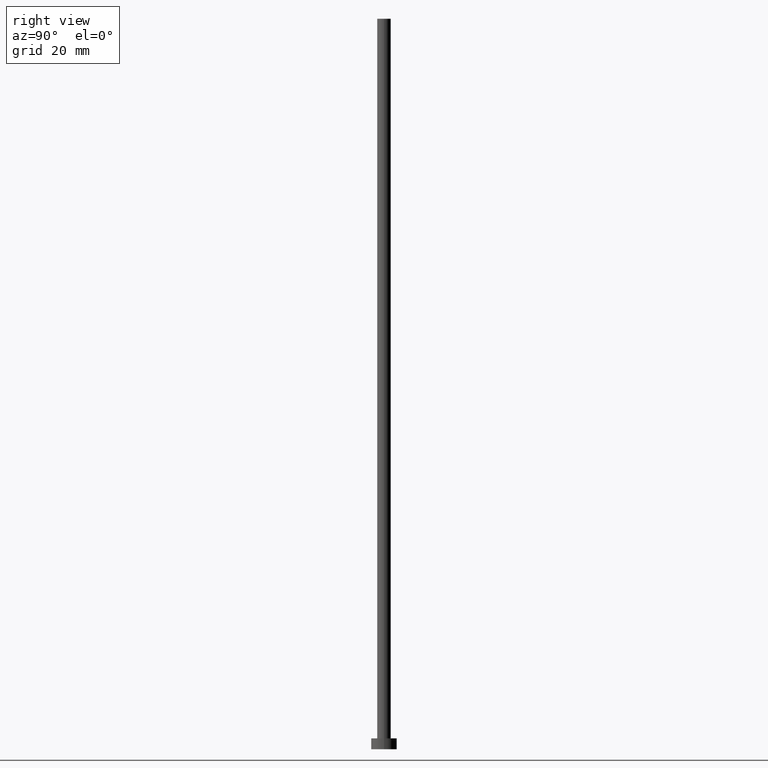
[diagram: clean part render]
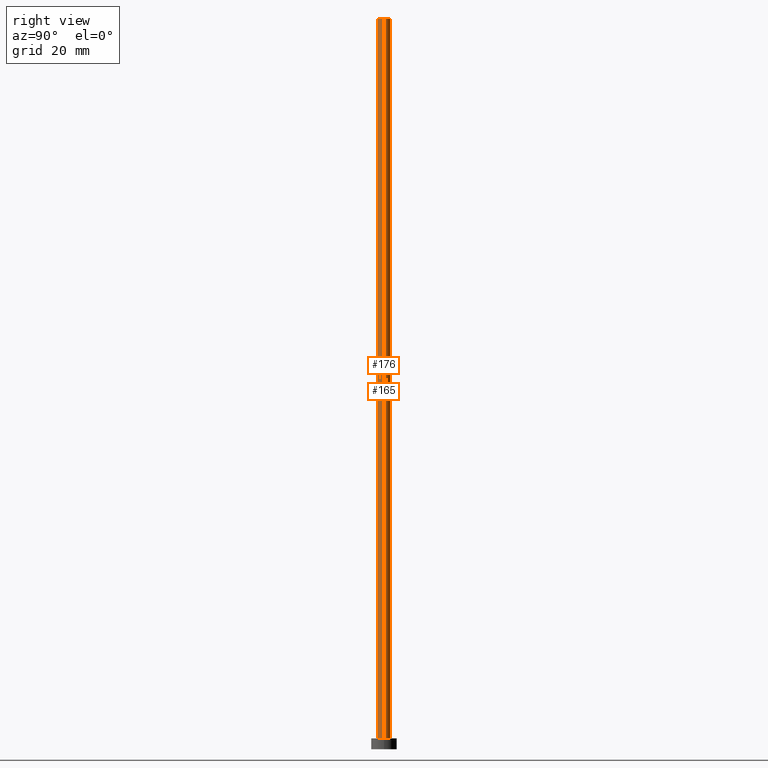
[diagram: same view with one multi-face feature highlighted, each face labeled with its STEP entity id]
A machine part, right view. The highlighted faces form ONE feature: a constant-radius fillet chain: 2 tangent blend faces with common blend radius 1.85 mm. The faces share edges in the B-rep.
Their STEP definitions:
[1] entity #176 (Cylinder):
#3 = DIRECTION ( 'NONE',  ( -0.000000000000000000, -0.000000000000000000, -1.000000000000000000 ) ) ;
#8 = LINE ( 'NONE', #86, #66 ) ;
#9 = DIRECTION ( 'NONE',  ( 1.000000000000000000, 0.000000000000000000, 0.000000000000000000 ) ) ;
#15 = EDGE_CURVE ( 'NONE', #126, #94, #8, .T. ) ;
#27 = CIRCLE ( 'NONE', #85, 1.850000000000000089 ) ;
#30 = ORIENTED_EDGE ( 'NONE', *, *, #15, .F. ) ;
#34 = DIRECTION ( 'NONE',  ( -0.000000000000000000, -0.000000000000000000, -1.000000000000000000 ) ) ;
#37 = CARTESIAN_POINT ( 'NONE',  ( 1.850000000000000089, 2.265596578422603100E-16, 200.0000000000000000 ) ) ;
#42 = EDGE_CURVE ( 'NONE', #248, #94, #222, .T. ) ;
#49 = VERTEX_POINT ( 'NONE', #158 ) ;
#65 = DIRECTION ( 'NONE',  ( 0.000000000000000000, 0.000000000000000000, 1.000000000000000000 ) ) ;
#66 = VECTOR ( 'NONE', #186, 1000.000000000000000 ) ;
#74 = CARTESIAN_POINT ( 'NONE',  ( 1.850000000000000089, 2.265596578422603100E-16, 3.000000000000000000 ) ) ;
#76 = DIRECTION ( 'NONE',  ( -1.000000000000000000, 0.000000000000000000, 0.000000000000000000 ) ) ;
#85 = AXIS2_PLACEMENT_3D ( 'NONE', #194, #123, #9 ) ;
#86 = CARTESIAN_POINT ( 'NONE',  ( 1.850000000000000089, 2.265596578422603100E-16, 200.0000000000000000 ) ) ;
#94 = VERTEX_POINT ( 'NONE', #74 ) ;
#102 = DIRECTION ( 'NONE',  ( 1.000000000000000000, 0.000000000000000000, 0.000000000000000000 ) ) ;
#105 = CARTESIAN_POINT ( 'NONE',  ( -1.850000000000000089, 0.000000000000000000, 200.0000000000000000 ) ) ;
#123 = DIRECTION ( 'NONE',  ( 0.000000000000000000, 0.000000000000000000, 1.000000000000000000 ) ) ;
#126 = VERTEX_POINT ( 'NONE', #37 ) ;
#130 = AXIS2_PLACEMENT_3D ( 'NONE', #164, #65, #102 ) ;
#147 = ORIENTED_EDGE ( 'NONE', *, *, #238, .F. ) ;
#149 = EDGE_LOOP ( 'NONE', ( #30, #147, #193, #197 ) ) ;
#153 = FACE_OUTER_BOUND ( 'NONE', #149, .T. ) ;
#154 = LINE ( 'NONE', #105, #175 ) ;
#158 = CARTESIAN_POINT ( 'NONE',  ( -1.850000000000000089, 0.000000000000000000, 200.0000000000000000 ) ) ;
#163 = AXIS2_PLACEMENT_3D ( 'NONE', #196, #34, #76 ) ;
#164 = CARTESIAN_POINT ( 'NONE',  ( 0.000000000000000000, 0.000000000000000000, 3.000000000000000000 ) ) ;
#175 = VECTOR ( 'NONE', #3, 1000.000000000000000 ) ;
#176 = ADVANCED_FACE ( 'NONE', ( #153 ), #254, .T. ) ;
#186 = DIRECTION ( 'NONE',  ( -0.000000000000000000, -0.000000000000000000, -1.000000000000000000 ) ) ;
#193 = ORIENTED_EDGE ( 'NONE', *, *, #227, .T. ) ;
#194 = CARTESIAN_POINT ( 'NONE',  ( 0.000000000000000000, 0.000000000000000000, 200.0000000000000000 ) ) ;
#196 = CARTESIAN_POINT ( 'NONE',  ( 0.000000000000000000, 0.000000000000000000, 200.0000000000000000 ) ) ;
#197 = ORIENTED_EDGE ( 'NONE', *, *, #42, .T. ) ;
#210 = CARTESIAN_POINT ( 'NONE',  ( -1.850000000000000089, 0.000000000000000000, 3.000000000000000000 ) ) ;
#222 = CIRCLE ( 'NONE', #130, 1.850000000000000089 ) ;
#227 = EDGE_CURVE ( 'NONE', #49, #248, #154, .T. ) ;
#238 = EDGE_CURVE ( 'NONE', #49, #126, #27, .T. ) ;
#248 = VERTEX_POINT ( 'NONE', #210 ) ;
#254 = CYLINDRICAL_SURFACE ( 'NONE', #163, 1.850000000000000089 ) ;
[2] entity #165 (Cylinder):
#3 = DIRECTION ( 'NONE',  ( -0.000000000000000000, -0.000000000000000000, -1.000000000000000000 ) ) ;
#4 = DIRECTION ( 'NONE',  ( 1.000000000000000000, 0.000000000000000000, 0.000000000000000000 ) ) ;
#6 = AXIS2_PLACEMENT_3D ( 'NONE', #113, #58, #250 ) ;
#7 = EDGE_CURVE ( 'NONE', #94, #248, #81, .T. ) ;
#8 = LINE ( 'NONE', #86, #66 ) ;
#13 = FACE_OUTER_BOUND ( 'NONE', #54, .T. ) ;
#15 = EDGE_CURVE ( 'NONE', #126, #94, #8, .T. ) ;
#37 = CARTESIAN_POINT ( 'NONE',  ( 1.850000000000000089, 2.265596578422603100E-16, 200.0000000000000000 ) ) ;
#49 = VERTEX_POINT ( 'NONE', #158 ) ;
#54 = EDGE_LOOP ( 'NONE', ( #114, #170, #167, #195 ) ) ;
#58 = DIRECTION ( 'NONE',  ( 0.000000000000000000, 0.000000000000000000, 1.000000000000000000 ) ) ;
#66 = VECTOR ( 'NONE', #186, 1000.000000000000000 ) ;
#67 = DIRECTION ( 'NONE',  ( 0.000000000000000000, 0.000000000000000000, 1.000000000000000000 ) ) ;
#74 = CARTESIAN_POINT ( 'NONE',  ( 1.850000000000000089, 2.265596578422603100E-16, 3.000000000000000000 ) ) ;
#81 = CIRCLE ( 'NONE', #184, 1.850000000000000089 ) ;
#86 = CARTESIAN_POINT ( 'NONE',  ( 1.850000000000000089, 2.265596578422603100E-16, 200.0000000000000000 ) ) ;
#94 = VERTEX_POINT ( 'NONE', #74 ) ;
#97 = EDGE_CURVE ( 'NONE', #126, #49, #204, .T. ) ;
#105 = CARTESIAN_POINT ( 'NONE',  ( -1.850000000000000089, 0.000000000000000000, 200.0000000000000000 ) ) ;
#113 = CARTESIAN_POINT ( 'NONE',  ( 0.000000000000000000, 0.000000000000000000, 200.0000000000000000 ) ) ;
#114 = ORIENTED_EDGE ( 'NONE', *, *, #97, .F. ) ;
#118 = DIRECTION ( 'NONE',  ( -0.000000000000000000, -0.000000000000000000, -1.000000000000000000 ) ) ;
#126 = VERTEX_POINT ( 'NONE', #37 ) ;
#154 = LINE ( 'NONE', #105, #175 ) ;
#158 = CARTESIAN_POINT ( 'NONE',  ( -1.850000000000000089, 0.000000000000000000, 200.0000000000000000 ) ) ;
#165 = ADVANCED_FACE ( 'NONE', ( #13 ), #217, .T. ) ;
#167 = ORIENTED_EDGE ( 'NONE', *, *, #7, .T. ) ;
#170 = ORIENTED_EDGE ( 'NONE', *, *, #15, .T. ) ;
#175 = VECTOR ( 'NONE', #3, 1000.000000000000000 ) ;
#184 = AXIS2_PLACEMENT_3D ( 'NONE', #246, #67, #4 ) ;
#186 = DIRECTION ( 'NONE',  ( -0.000000000000000000, -0.000000000000000000, -1.000000000000000000 ) ) ;
#188 = AXIS2_PLACEMENT_3D ( 'NONE', #240, #118, #223 ) ;
#195 = ORIENTED_EDGE ( 'NONE', *, *, #227, .F. ) ;
#204 = CIRCLE ( 'NONE', #6, 1.850000000000000089 ) ;
#210 = CARTESIAN_POINT ( 'NONE',  ( -1.850000000000000089, 0.000000000000000000, 3.000000000000000000 ) ) ;
#217 = CYLINDRICAL_SURFACE ( 'NONE', #188, 1.850000000000000089 ) ;
#223 = DIRECTION ( 'NONE',  ( -1.000000000000000000, 0.000000000000000000, 0.000000000000000000 ) ) ;
#227 = EDGE_CURVE ( 'NONE', #49, #248, #154, .T. ) ;
#240 = CARTESIAN_POINT ( 'NONE',  ( 0.000000000000000000, 0.000000000000000000, 200.0000000000000000 ) ) ;
#246 = CARTESIAN_POINT ( 'NONE',  ( 0.000000000000000000, 0.000000000000000000, 3.000000000000000000 ) ) ;
#248 = VERTEX_POINT ( 'NONE', #210 ) ;
#250 = DIRECTION ( 'NONE',  ( 1.000000000000000000, 0.000000000000000000, 0.000000000000000000 ) ) ;